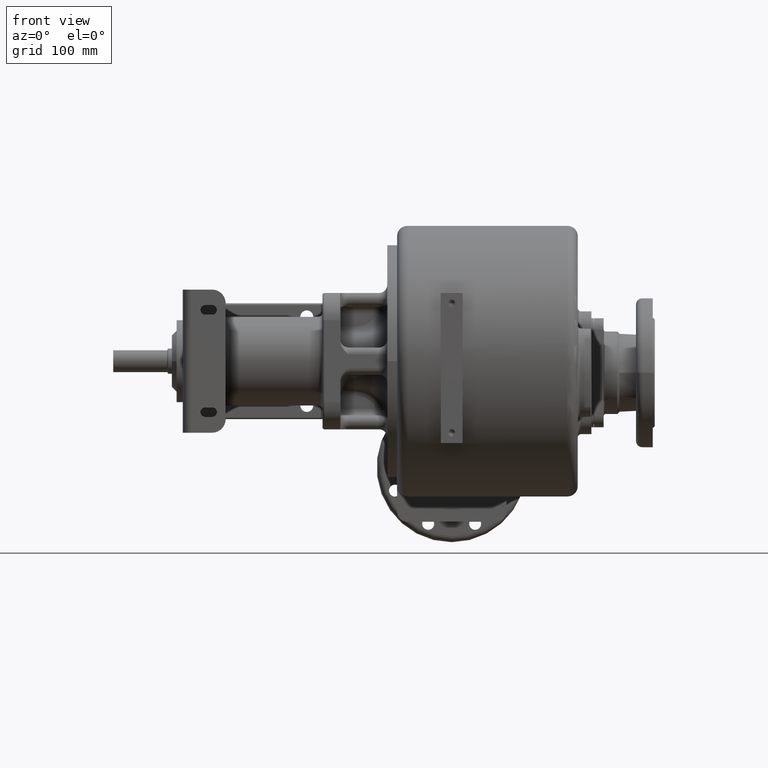
[diagram: clean part render]
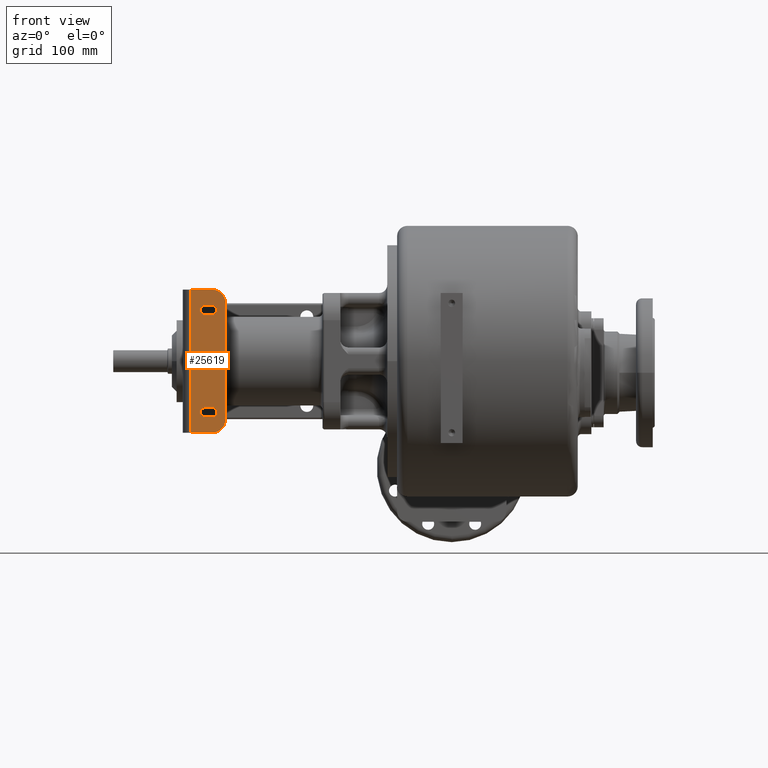
[diagram: same view with one face highlighted and labeled with its STEP entity id]
A machine part, front view. The second image highlights one B-rep face of the part: STEP entity #25619.
In plain terms, the highlighted planar face has unit normal (0, 1, 0).
Its self-contained STEP definition (entity closure, byte-faithful):
#8801=DIRECTION('',(0.E0,0.E0,1.E0));
#8802=VECTOR('',#8801,2.1E2);
#8803=CARTESIAN_POINT('',(-3.825E2,0.E0,-1.05E2));
#8804=LINE('',#8803,#8802);
#8819=CARTESIAN_POINT('',(-3.515E2,0.E0,8.5E1));
#8820=DIRECTION('',(0.E0,-1.E0,0.E0));
#8821=DIRECTION('',(1.E0,0.E0,0.E0));
#8822=AXIS2_PLACEMENT_3D('',#8819,#8820,#8821);
#8824=DIRECTION('',(0.E0,0.E0,-1.E0));
#8825=VECTOR('',#8824,1.7E2);
#8826=CARTESIAN_POINT('',(-3.315E2,0.E0,8.5E1));
#8827=LINE('',#8826,#8825);
#8828=CARTESIAN_POINT('',(-3.515E2,0.E0,-8.5E1));
#8829=DIRECTION('',(0.E0,-1.E0,0.E0));
#8830=DIRECTION('',(0.E0,0.E0,-1.E0));
#8831=AXIS2_PLACEMENT_3D('',#8828,#8829,#8830);
#8833=DIRECTION('',(-1.E0,0.E0,0.E0));
#8834=VECTOR('',#8833,3.1E1);
#8835=CARTESIAN_POINT('',(-3.515E2,0.E0,-1.05E2));
#8836=LINE('',#8835,#8834);
#8837=DIRECTION('',(1.E0,0.E0,0.E0));
#8838=VECTOR('',#8837,3.1E1);
#8839=CARTESIAN_POINT('',(-3.825E2,0.E0,1.05E2));
#8840=LINE('',#8839,#8838);
#8841=CARTESIAN_POINT('',(-3.615E2,0.E0,7.5E1));
#8842=DIRECTION('',(0.E0,1.E0,0.E0));
#8843=DIRECTION('',(0.E0,0.E0,-1.E0));
#8844=AXIS2_PLACEMENT_3D('',#8841,#8842,#8843);
#8846=DIRECTION('',(1.E0,0.E0,0.E0));
#8847=VECTOR('',#8846,1.E1);
#8848=CARTESIAN_POINT('',(-3.615E2,0.E0,6.8E1));
#8849=LINE('',#8848,#8847);
#8850=CARTESIAN_POINT('',(-3.515E2,0.E0,7.5E1));
#8851=DIRECTION('',(0.E0,1.E0,0.E0));
#8852=DIRECTION('',(0.E0,0.E0,1.E0));
#8853=AXIS2_PLACEMENT_3D('',#8850,#8851,#8852);
#8855=DIRECTION('',(-1.E0,0.E0,0.E0));
#8856=VECTOR('',#8855,1.E1);
#8857=CARTESIAN_POINT('',(-3.515E2,0.E0,8.2E1));
#8858=LINE('',#8857,#8856);
#8859=DIRECTION('',(1.E0,0.E0,0.E0));
#8860=VECTOR('',#8859,1.E1);
#8861=CARTESIAN_POINT('',(-3.615E2,0.E0,-8.2E1));
#8862=LINE('',#8861,#8860);
#8863=CARTESIAN_POINT('',(-3.515E2,0.E0,-7.5E1));
#8864=DIRECTION('',(0.E0,1.E0,0.E0));
#8865=DIRECTION('',(0.E0,0.E0,1.E0));
#8866=AXIS2_PLACEMENT_3D('',#8863,#8864,#8865);
#8868=DIRECTION('',(-1.E0,0.E0,0.E0));
#8869=VECTOR('',#8868,1.E1);
#8870=CARTESIAN_POINT('',(-3.515E2,0.E0,-6.8E1));
#8871=LINE('',#8870,#8869);
#8872=CARTESIAN_POINT('',(-3.615E2,0.E0,-7.5E1));
#8873=DIRECTION('',(0.E0,1.E0,0.E0));
#8874=DIRECTION('',(0.E0,0.E0,-1.E0));
#8875=AXIS2_PLACEMENT_3D('',#8872,#8873,#8874);
#13713=CARTESIAN_POINT('',(-3.825E2,0.E0,-1.05E2));
#13714=CARTESIAN_POINT('',(-3.825E2,0.E0,1.05E2));
#13715=VERTEX_POINT('',#13713);
#13716=VERTEX_POINT('',#13714);
#13741=CARTESIAN_POINT('',(-3.615E2,0.E0,-8.2E1));
#13742=CARTESIAN_POINT('',(-3.515E2,0.E0,-8.2E1));
#13743=VERTEX_POINT('',#13741);
#13744=VERTEX_POINT('',#13742);
#13745=CARTESIAN_POINT('',(-3.515E2,0.E0,-6.8E1));
#13746=VERTEX_POINT('',#13745);
#13747=CARTESIAN_POINT('',(-3.615E2,0.E0,-6.8E1));
#13748=VERTEX_POINT('',#13747);
#13749=CARTESIAN_POINT('',(-3.315E2,0.E0,8.5E1));
#13750=CARTESIAN_POINT('',(-3.515E2,0.E0,1.05E2));
#13751=VERTEX_POINT('',#13749);
#13752=VERTEX_POINT('',#13750);
#13757=CARTESIAN_POINT('',(-3.515E2,0.E0,-1.05E2));
#13758=CARTESIAN_POINT('',(-3.315E2,0.E0,-8.5E1));
#13759=VERTEX_POINT('',#13757);
#13760=VERTEX_POINT('',#13758);
#13793=CARTESIAN_POINT('',(-3.615E2,0.E0,6.8E1));
#13794=CARTESIAN_POINT('',(-3.615E2,0.E0,8.2E1));
#13795=VERTEX_POINT('',#13793);
#13796=VERTEX_POINT('',#13794);
#13797=CARTESIAN_POINT('',(-3.515E2,0.E0,6.8E1));
#13798=VERTEX_POINT('',#13797);
#13799=CARTESIAN_POINT('',(-3.515E2,0.E0,8.2E1));
#13800=VERTEX_POINT('',#13799);
#25581=CARTESIAN_POINT('',(-3.945E2,0.E0,1.05E2));
#25582=DIRECTION('',(0.E0,1.E0,0.E0));
#25583=DIRECTION('',(0.E0,0.E0,1.E0));
#25584=AXIS2_PLACEMENT_3D('',#25581,#25582,#25583);
#25585=PLANE('',#25584);
#25587=ORIENTED_EDGE('',*,*,#25586,.F.);
#25589=ORIENTED_EDGE('',*,*,#25588,.T.);
#25591=ORIENTED_EDGE('',*,*,#25590,.F.);
#25593=ORIENTED_EDGE('',*,*,#25592,.T.);
#25594=ORIENTED_EDGE('',*,*,#25571,.T.);
#25596=ORIENTED_EDGE('',*,*,#25595,.T.);
#25597=EDGE_LOOP('',(#25587,#25589,#25591,#25593,#25594,#25596));
#25598=FACE_OUTER_BOUND('',#25597,.F.);
#25600=ORIENTED_EDGE('',*,*,#25599,.F.);
#25602=ORIENTED_EDGE('',*,*,#25601,.T.);
#25604=ORIENTED_EDGE('',*,*,#25603,.F.);
#25606=ORIENTED_EDGE('',*,*,#25605,.T.);
#25607=EDGE_LOOP('',(#25600,#25602,#25604,#25606));
#25608=FACE_BOUND('',#25607,.F.);
#25610=ORIENTED_EDGE('',*,*,#25609,.T.);
#25612=ORIENTED_EDGE('',*,*,#25611,.F.);
#25614=ORIENTED_EDGE('',*,*,#25613,.T.);
#25616=ORIENTED_EDGE('',*,*,#25615,.F.);
#25617=EDGE_LOOP('',(#25610,#25612,#25614,#25616));
#25618=FACE_BOUND('',#25617,.F.);
#25619=ADVANCED_FACE('',(#25598,#25608,#25618),#25585,.F.);
#8823=CIRCLE('',#8822,2.E1);
#8832=CIRCLE('',#8831,2.E1);
#8845=CIRCLE('',#8844,7.E0);
#8854=CIRCLE('',#8853,7.E0);
#8867=CIRCLE('',#8866,7.E0);
#8876=CIRCLE('',#8875,7.E0);
#25571=EDGE_CURVE('',#13715,#13716,#8804,.T.);
#25586=EDGE_CURVE('',#13751,#13752,#8823,.T.);
#25588=EDGE_CURVE('',#13751,#13760,#8827,.T.);
#25590=EDGE_CURVE('',#13759,#13760,#8832,.T.);
#25592=EDGE_CURVE('',#13759,#13715,#8836,.T.);
#25595=EDGE_CURVE('',#13716,#13752,#8840,.T.);
#25599=EDGE_CURVE('',#13795,#13796,#8845,.T.);
#25601=EDGE_CURVE('',#13795,#13798,#8849,.T.);
#25603=EDGE_CURVE('',#13800,#13798,#8854,.T.);
#25605=EDGE_CURVE('',#13800,#13796,#8858,.T.);
#25609=EDGE_CURVE('',#13743,#13744,#8862,.T.);
#25611=EDGE_CURVE('',#13746,#13744,#8867,.T.);
#25613=EDGE_CURVE('',#13746,#13748,#8871,.T.);
#25615=EDGE_CURVE('',#13743,#13748,#8876,.T.);